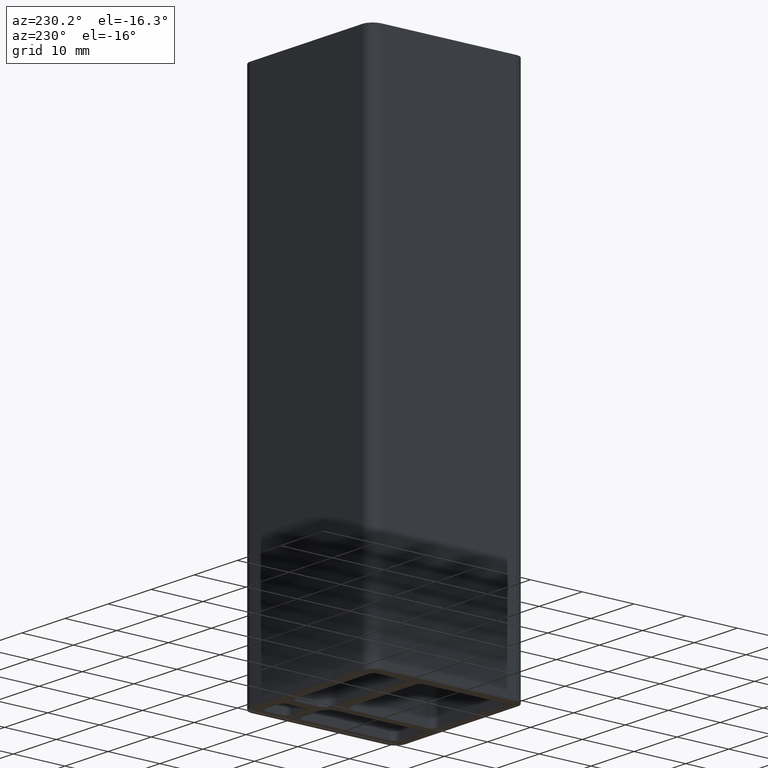
[diagram: clean part render]
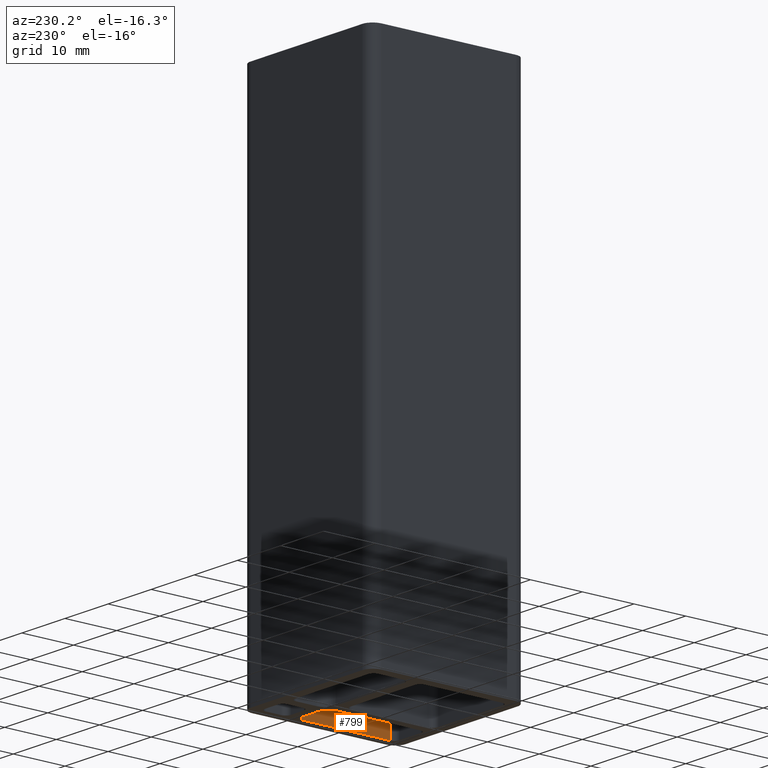
[diagram: same view with one face highlighted and labeled with its STEP entity id]
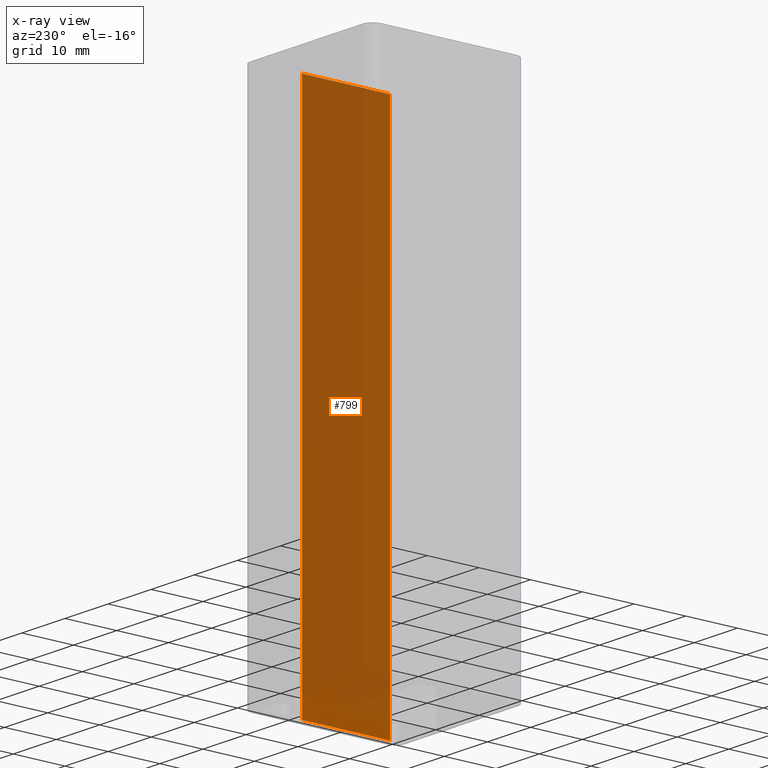
[diagram: x-ray of the same camera — body ghosted, the highlighted face saturated]
A machine part, auxiliary view. The second image highlights one B-rep face of the part: STEP entity #799.
The next image is the same camera in x-ray: the body ghosted, the highlighted face saturated — about 96% of this face is hidden behind the body in this view.
In plain terms, the highlighted planar face has unit normal (1, 0, 0).
Its self-contained STEP definition (entity closure, byte-faithful):
#85=FACE_OUTER_BOUND('',#127,.T.);
#127=EDGE_LOOP('',(#543,#544,#545,#546));
#179=LINE('',#1184,#259);
#180=LINE('',#1187,#260);
#181=LINE('',#1189,#261);
#182=LINE('',#1190,#262);
#259=VECTOR('',#937,100.);
#260=VECTOR('',#940,17.);
#261=VECTOR('',#941,17.);
#262=VECTOR('',#942,100.);
#339=VERTEX_POINT('',#1180);
#340=VERTEX_POINT('',#1182);
#341=VERTEX_POINT('',#1186);
#342=VERTEX_POINT('',#1188);
#421=EDGE_CURVE('',#340,#339,#179,.T.);
#422=EDGE_CURVE('',#339,#341,#180,.T.);
#423=EDGE_CURVE('',#342,#340,#181,.T.);
#424=EDGE_CURVE('',#342,#341,#182,.T.);
#543=ORIENTED_EDGE('',*,*,#422,.F.);
#544=ORIENTED_EDGE('',*,*,#421,.F.);
#545=ORIENTED_EDGE('',*,*,#423,.F.);
#546=ORIENTED_EDGE('',*,*,#424,.T.);
#776=PLANE('',#845);
#799=ADVANCED_FACE('',(#85),#776,.F.);
#845=AXIS2_PLACEMENT_3D('',#1185,#938,#939);
#937=DIRECTION('',(0.,0.,1.));
#938=DIRECTION('center_axis',(1.,5.2245789394125E-16,0.));
#939=DIRECTION('ref_axis',(-5.32907051820075E-16,1.,0.));
#940=DIRECTION('',(5.2245789394125E-16,-1.,0.));
#941=DIRECTION('',(-5.2245789394125E-16,1.,0.));
#942=DIRECTION('',(0.,0.,1.));
#1180=CARTESIAN_POINT('',(13.,5.00000000000001,100.));
#1182=CARTESIAN_POINT('',(13.,5.00000000000001,0.));
#1184=CARTESIAN_POINT('',(13.,5.00000000000001,0.));
#1185=CARTESIAN_POINT('Origin',(13.,-12.,0.));
#1186=CARTESIAN_POINT('',(13.,-12.,100.));
#1187=CARTESIAN_POINT('',(13.,-5.99999999980526,100.));
#1188=CARTESIAN_POINT('',(13.,-12.,0.));
#1189=CARTESIAN_POINT('',(13.,-5.99999999980526,0.));
#1190=CARTESIAN_POINT('',(13.,-12.,0.));